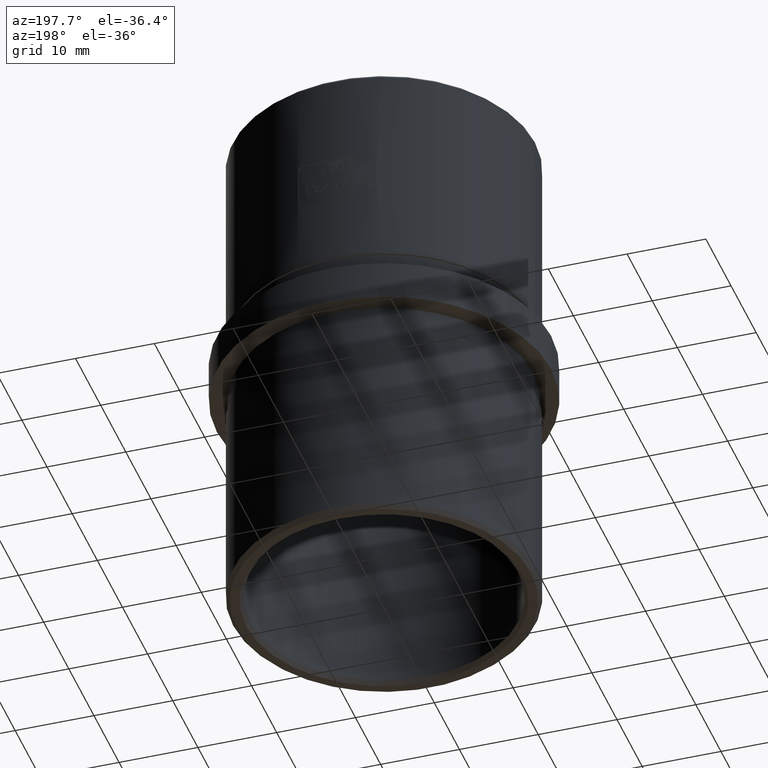
[diagram: clean part render]
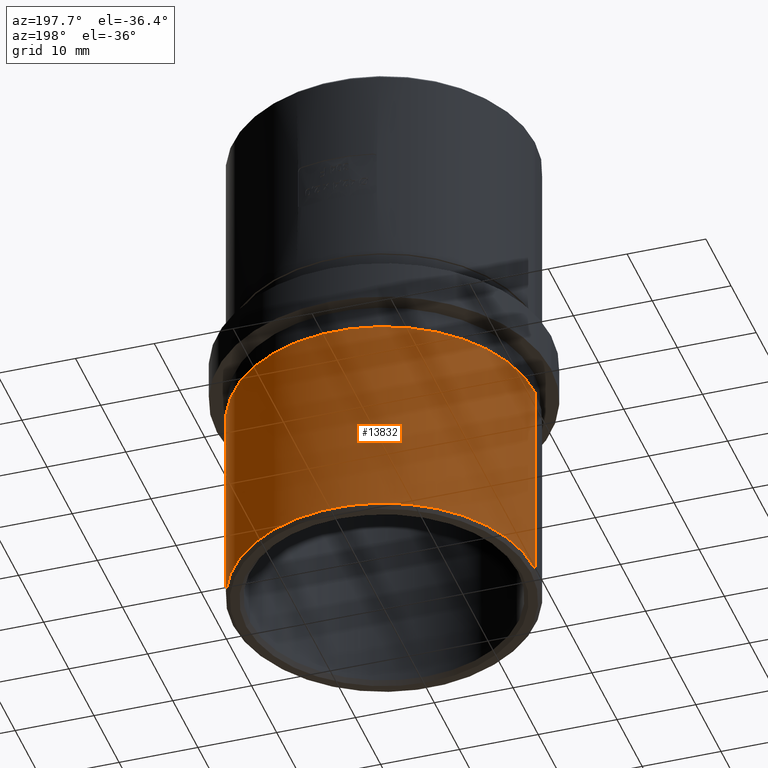
[diagram: same view with one face highlighted and labeled with its STEP entity id]
A machine part, auxiliary view. The second image highlights one B-rep face of the part: STEP entity #13832.
In plain terms, the highlighted cylindrical surface (partial cylindrical patch) has radius 19.15 mm, axis along (-0, -0, 1).
Its self-contained STEP definition (entity closure, byte-faithful):
#609 = LINE ( 'NONE', #15121, #18872 ) ;
#812 = CYLINDRICAL_SURFACE ( 'NONE', #1103, 19.15000000000000200 ) ;
#1103 = AXIS2_PLACEMENT_3D ( 'NONE', #15687, #14183, #1756 ) ;
#1191 = VERTEX_POINT ( 'NONE', #3305 ) ;
#1455 = CARTESIAN_POINT ( 'NONE',  ( 0.0000000000000000000, 0.0000000000000000000, -5.500000000000000000 ) ) ;
#1756 = DIRECTION ( 'NONE',  ( -1.000000000000000000, 0.0000000000000000000, 0.0000000000000000000 ) ) ;
#2383 = VERTEX_POINT ( 'NONE', #2659 ) ;
#2539 = ORIENTED_EDGE ( 'NONE', *, *, #18571, .T. ) ;
#2659 = CARTESIAN_POINT ( 'NONE',  ( 19.15000000000000200, -2.345198620367181800E-015, -32.00000000000000000 ) ) ;
#3216 = ORIENTED_EDGE ( 'NONE', *, *, #14935, .F. ) ;
#3305 = CARTESIAN_POINT ( 'NONE',  ( -19.15000000000000200, 0.0000000000000000000, -5.500000000000000000 ) ) ;
#5740 = DIRECTION ( 'NONE',  ( -0.0000000000000000000, -0.0000000000000000000, 1.000000000000000000 ) ) ;
#6348 = EDGE_LOOP ( 'NONE', ( #14456, #2539, #19885, #3216 ) ) ;
#6710 = VECTOR ( 'NONE', #11140, 1000.000000000000000 ) ;
#7716 = DIRECTION ( 'NONE',  ( 1.000000000000000000, 0.0000000000000000000, 0.0000000000000000000 ) ) ;
#9247 = CARTESIAN_POINT ( 'NONE',  ( 19.15000000000000200, -2.345198620367181800E-015, -5.500000000000000000 ) ) ;
#9675 = CARTESIAN_POINT ( 'NONE',  ( 0.0000000000000000000, 0.0000000000000000000, -32.00000000000000000 ) ) ;
#10666 = DIRECTION ( 'NONE',  ( -0.0000000000000000000, -0.0000000000000000000, 1.000000000000000000 ) ) ;
#11140 = DIRECTION ( 'NONE',  ( -0.0000000000000000000, -0.0000000000000000000, 1.000000000000000000 ) ) ;
#11749 = EDGE_CURVE ( 'NONE', #2383, #19587, #609, .T. ) ;
#13097 = AXIS2_PLACEMENT_3D ( 'NONE', #9675, #16034, #14319 ) ;
#13534 = CIRCLE ( 'NONE', #13097, 19.15000000000000200 ) ;
#13832 = ADVANCED_FACE ( 'NONE', ( #16658 ), #812, .T. ) ;
#14183 = DIRECTION ( 'NONE',  ( -0.0000000000000000000, -0.0000000000000000000, 1.000000000000000000 ) ) ;
#14319 = DIRECTION ( 'NONE',  ( -1.000000000000000000, 0.0000000000000000000, 0.0000000000000000000 ) ) ;
#14456 = ORIENTED_EDGE ( 'NONE', *, *, #11749, .F. ) ;
#14935 = EDGE_CURVE ( 'NONE', #19587, #1191, #15567, .T. ) ;
#15121 = CARTESIAN_POINT ( 'NONE',  ( 19.15000000000000200, -2.345198620367181800E-015, -32.50000000000000000 ) ) ;
#15567 = CIRCLE ( 'NONE', #16957, 19.15000000000000200 ) ;
#15666 = VERTEX_POINT ( 'NONE', #17214 ) ;
#15687 = CARTESIAN_POINT ( 'NONE',  ( 0.0000000000000000000, 0.0000000000000000000, -32.50000000000000000 ) ) ;
#16034 = DIRECTION ( 'NONE',  ( -0.0000000000000000000, -0.0000000000000000000, 1.000000000000000000 ) ) ;
#16658 = FACE_OUTER_BOUND ( 'NONE', #6348, .T. ) ;
#16957 = AXIS2_PLACEMENT_3D ( 'NONE', #1455, #10666, #7716 ) ;
#17114 = EDGE_CURVE ( 'NONE', #15666, #1191, #19155, .T. ) ;
#17214 = CARTESIAN_POINT ( 'NONE',  ( -19.15000000000000200, 0.0000000000000000000, -32.00000000000000000 ) ) ;
#18571 = EDGE_CURVE ( 'NONE', #2383, #15666, #13534, .T. ) ;
#18872 = VECTOR ( 'NONE', #5740, 1000.000000000000000 ) ;
#19155 = LINE ( 'NONE', #19159, #6710 ) ;
#19159 = CARTESIAN_POINT ( 'NONE',  ( -19.15000000000000200, 0.0000000000000000000, -32.50000000000000000 ) ) ;
#19587 = VERTEX_POINT ( 'NONE', #9247 ) ;
#19885 = ORIENTED_EDGE ( 'NONE', *, *, #17114, .T. ) ;